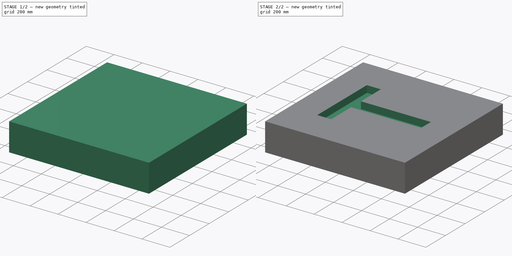
[diagram: build sequence overview — one tinted view per stage of 2, left to right]
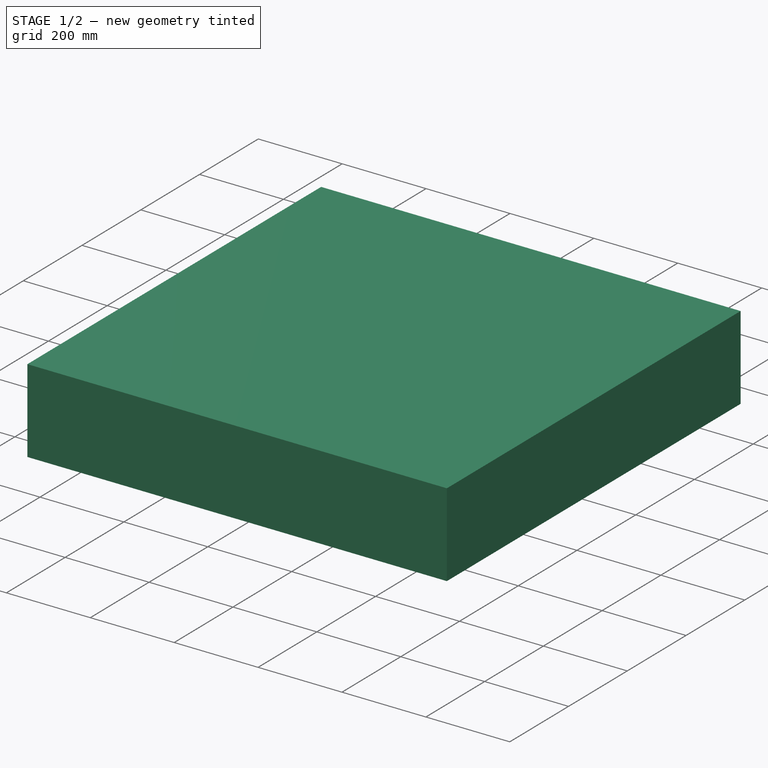
[diagram: stage 1 of 2 — iso view after this stage's code; geometry added in this stage tinted green]
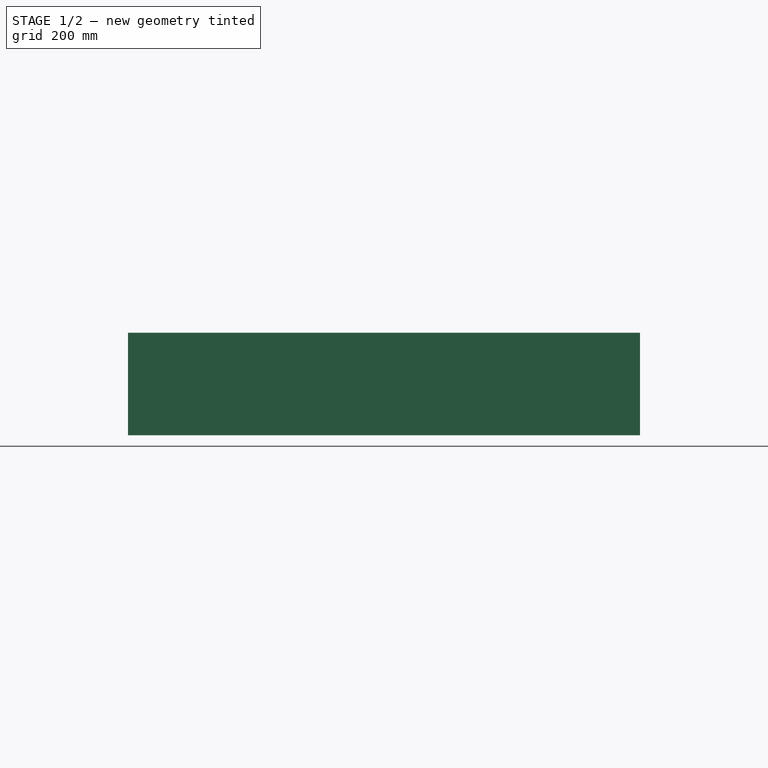
[diagram: stage 1 of 2 — front view after this stage's code; geometry added in this stage tinted green]
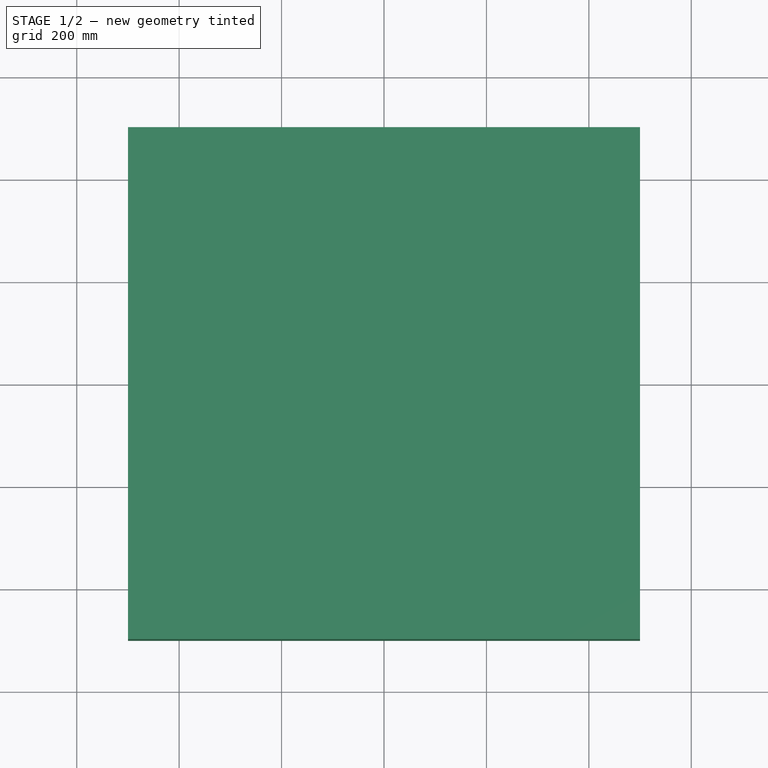
[diagram: stage 1 of 2 — top view after this stage's code; geometry added in this stage tinted green]
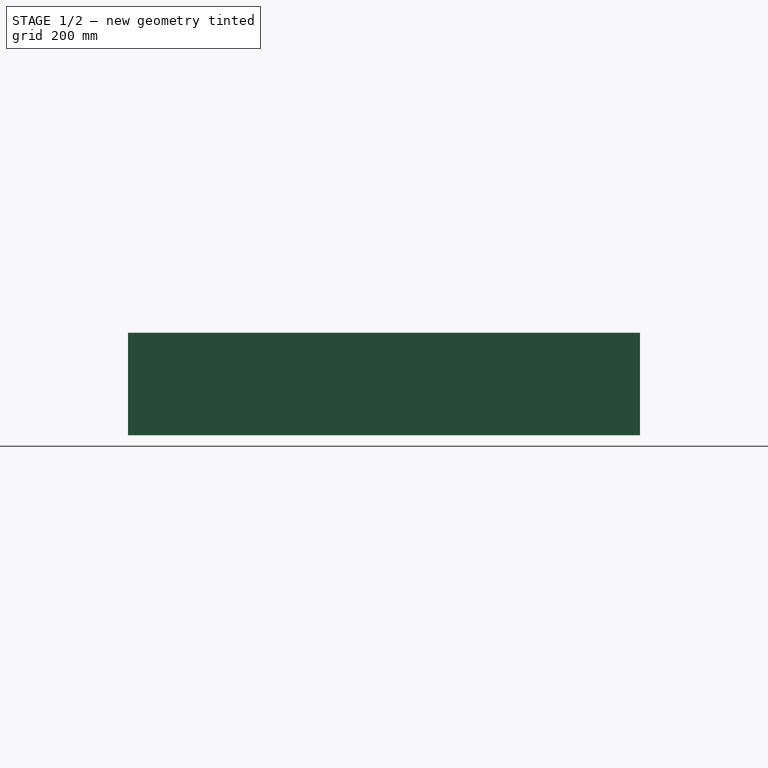
[diagram: stage 1 of 2 — right view after this stage's code; geometry added in this stage tinted green]
FCSTD DOCUMENT  (FreeCAD 0.16R6706 (Git))
Label: engraved
License: All rights reserved
LicenseURL: http://en.wikipedia.org/wiki/All_rights_reserved
objects: Sketcher::SketchObject×2, PartDesign::Pad×1, PartDesign::Pocket×1, Drawing::FeatureViewPart×1, Drawing::FeaturePage×1
note: 6 computed .brp shape members not serialized (recipe doc carries the construction recipe); baked Part::Feature solids carry a one-line shape summary decoded from their .brp

FEATURE [Sketcher::SketchObject] Sketch
  sketch-geometry (4):
    g0: LineSegment StartX=-500 StartY=500 StartZ=0 EndX=500 EndY=500 EndZ=0
    g1: LineSegment StartX=500 StartY=500 StartZ=0 EndX=500 EndY=-500 EndZ=0
    g2: LineSegment StartX=500 StartY=-500 StartZ=0 EndX=-500 EndY=-500 EndZ=0
    g3: LineSegment StartX=-500 StartY=-500 StartZ=0 EndX=-500 EndY=500 EndZ=0
  constraints (11):
    c: Coincident(g0,g1)
    c: Coincident(g1,g2)
    c: Coincident(g2,g3)
    c: Coincident(g3,g0)
    c: Horizontal(g0)
    c: Horizontal(g2)
    c: Vertical(g1)
    c: Vertical(g3)
    c: DistanceX(g0,g0) = 1000
    c: DistanceY(g1,g1) = 1000
    c: Symmetric(g1,g0,g-1)
FEATURE [PartDesign::Pad] Pad
  Length = 200
  Length2 = 100
  Sketch = -> Sketch
  Type = 0
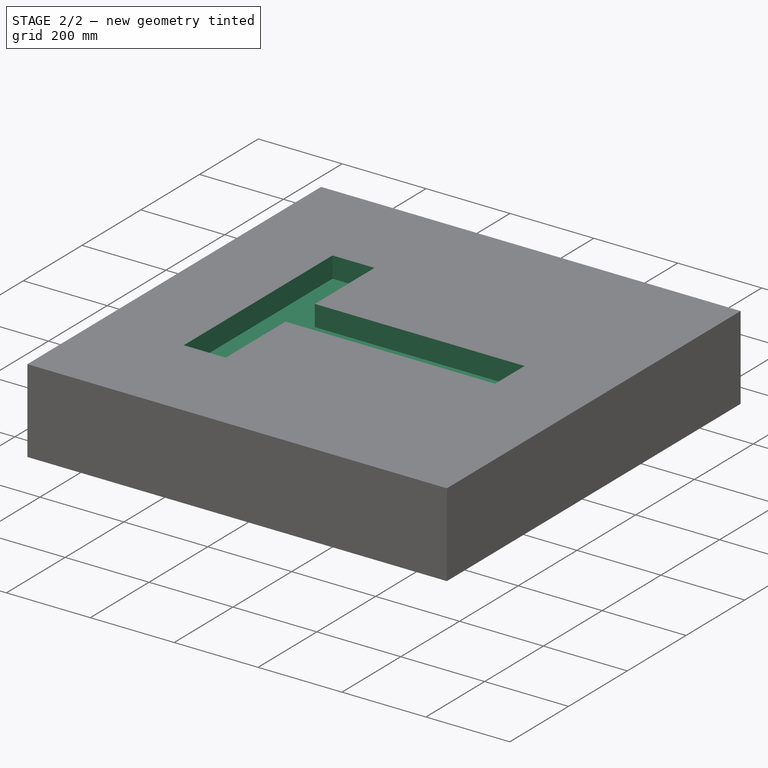
[diagram: stage 2 of 2 — iso view after this stage's code; geometry added in this stage tinted green]
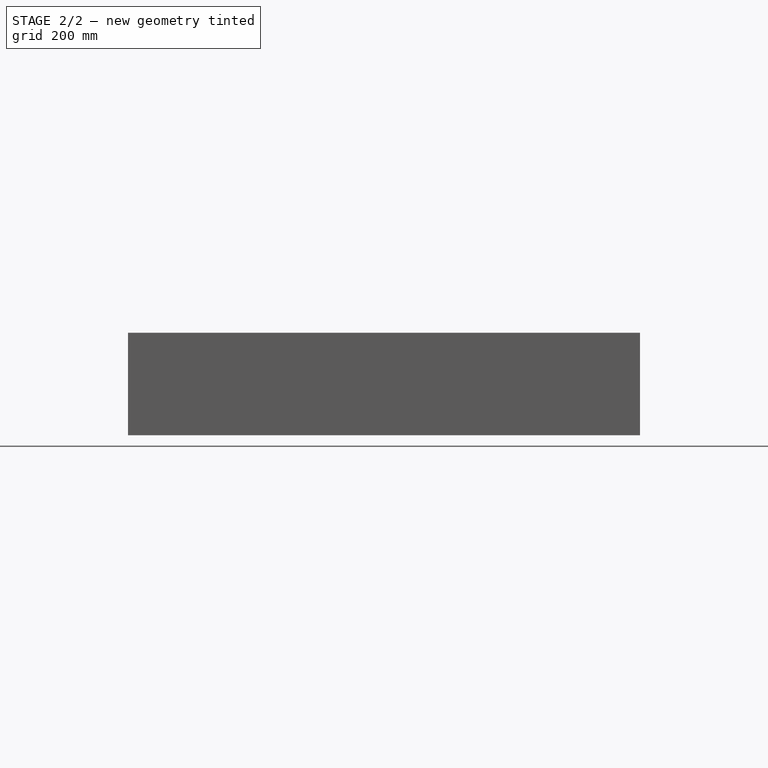
[diagram: stage 2 of 2 — front view after this stage's code; geometry added in this stage tinted green]
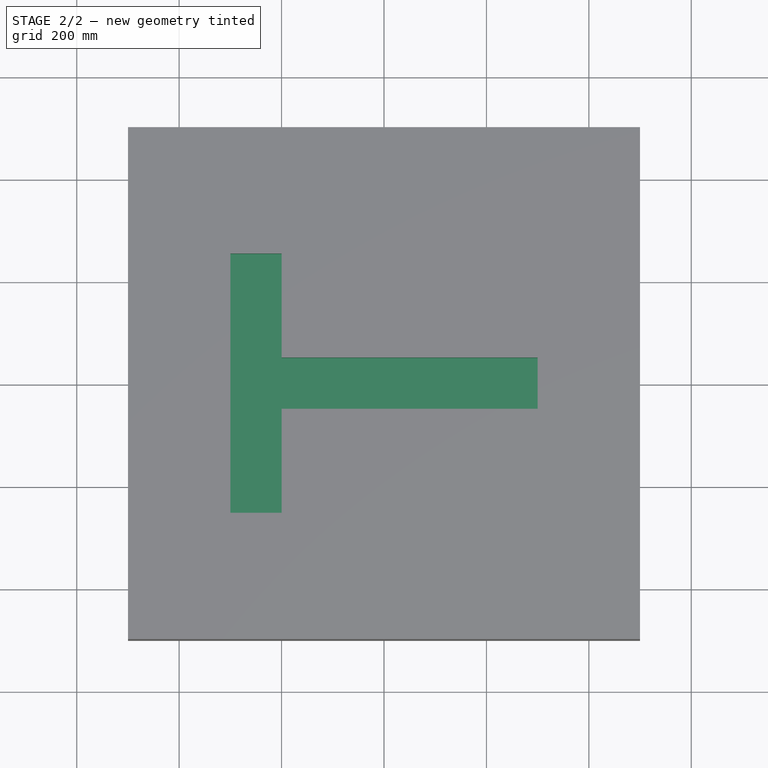
[diagram: stage 2 of 2 — top view after this stage's code; geometry added in this stage tinted green]
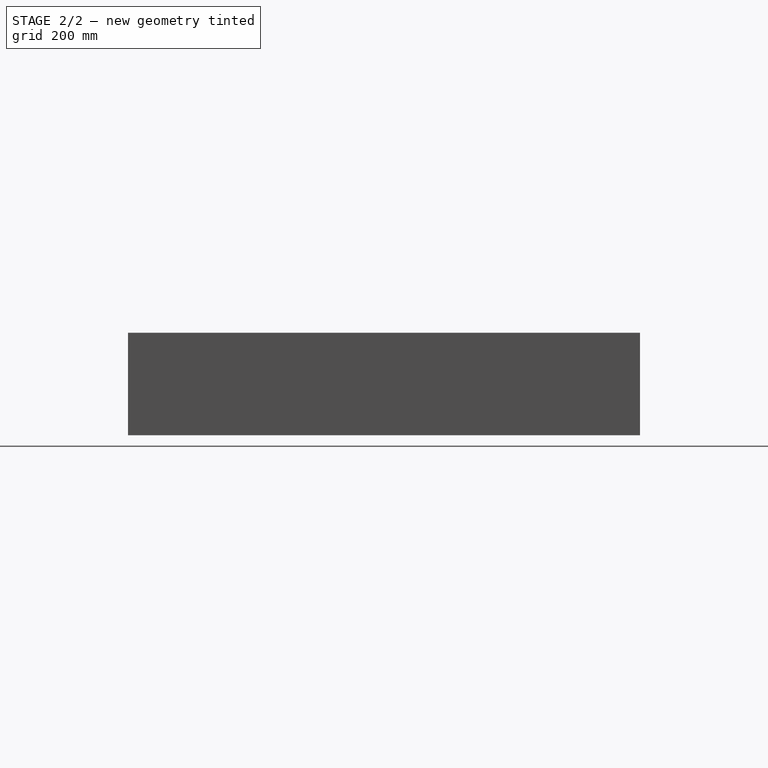
[diagram: stage 2 of 2 — right view after this stage's code; geometry added in this stage tinted green]
FEATURE [Sketcher::SketchObject] Sketch001
  Placement = pos=(0,0,200) rot=(0,0,1;0rad)
  Support = -> Pad [Face6]
  sketch-geometry (8):
    g0: LineSegment StartX=-300 StartY=253.106 StartZ=0 EndX=-300 EndY=-253.106 EndZ=0
    g1: LineSegment StartX=-300 StartY=-253.106 StartZ=0 EndX=-200 EndY=-253.106 EndZ=0
    g2: LineSegment StartX=-200 StartY=-253.106 StartZ=0 EndX=-200 EndY=-50 EndZ=0
    g3: LineSegment StartX=-200 StartY=-50 StartZ=0 EndX=300 EndY=-50 EndZ=0
    g4: LineSegment StartX=300 StartY=-50 StartZ=0 EndX=300 EndY=50 EndZ=0
    g5: LineSegment StartX=300 StartY=50 StartZ=0 EndX=-200 EndY=50 EndZ=0
    g6: LineSegment StartX=-200 StartY=50 StartZ=0 EndX=-200 EndY=253.106 EndZ=0
    g7: LineSegment StartX=-200 StartY=253.106 StartZ=0 EndX=-300 EndY=253.106 EndZ=0
  constraints (22):
    c: Vertical(g0)
    c: Coincident(g0,g1)
    c: Horizontal(g1)
    c: Coincident(g1,g2)
    c: Vertical(g2)
    c: Coincident(g2,g3)
    c: Horizontal(g3)
    c: Coincident(g3,g4)
    c: Coincident(g4,g5)
    c: Horizontal(g5)
    c: Coincident(g5,g6)
    c: Vertical(g6)
    c: Coincident(g6,g7)
    c: Coincident(g7,g0)
    c: Horizontal(g7)
    c: Vertical(g4)
    c: Symmetric(g5,g2,g-1)
    c: DistanceX(g7,g7) = 100
    c: DistanceY(g4,g4) = 100
    c: Equal(g6,g2)
    c: DistanceX(g5,g-1) = 200
    c: DistanceX(g-1,g4) = 300
FEATURE [PartDesign::Pocket] Pocket
  Length = 50
  Sketch = -> Sketch001
  Type = 0
FEATURE [Drawing::FeatureViewPart] View
  Direction = (1,-1,1)
  HiddenWidth = 0.15
  LineWidth = 0.35
  Rotation = 60
  Scale = 0.1
  ShowHiddenLines = true
  ShowSmoothLines = false
  Source = -> Pocket
  Tolerance = 0.05
  ViewResult = <blob: 2830 chars omitted>
  Visible = true
  X = 105
  Y = 164.83
FEATURE [Drawing::FeaturePage] Page
  Group = -> [View]
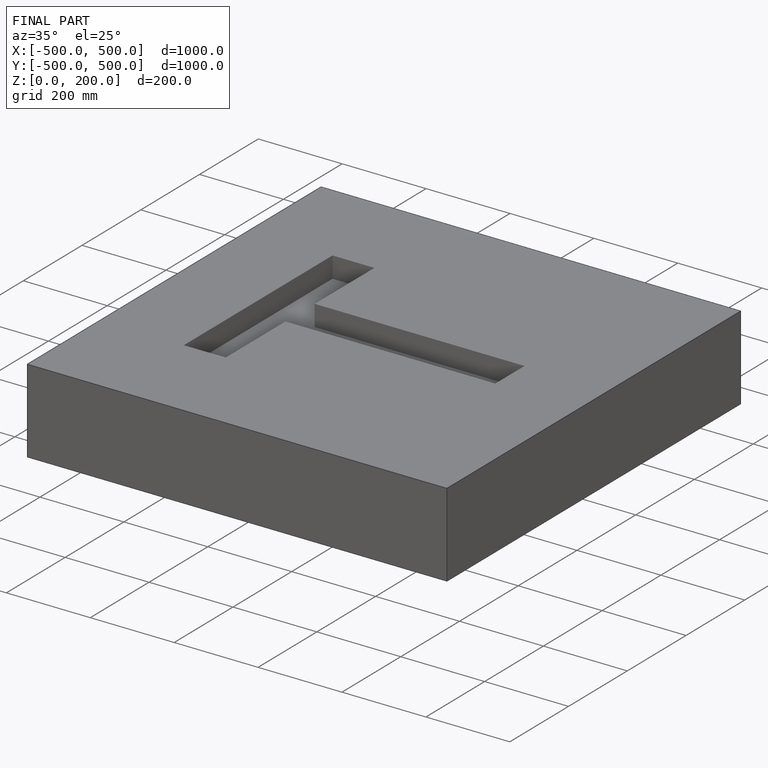
[diagram: finished part — iso view with bounding-box wireframe]
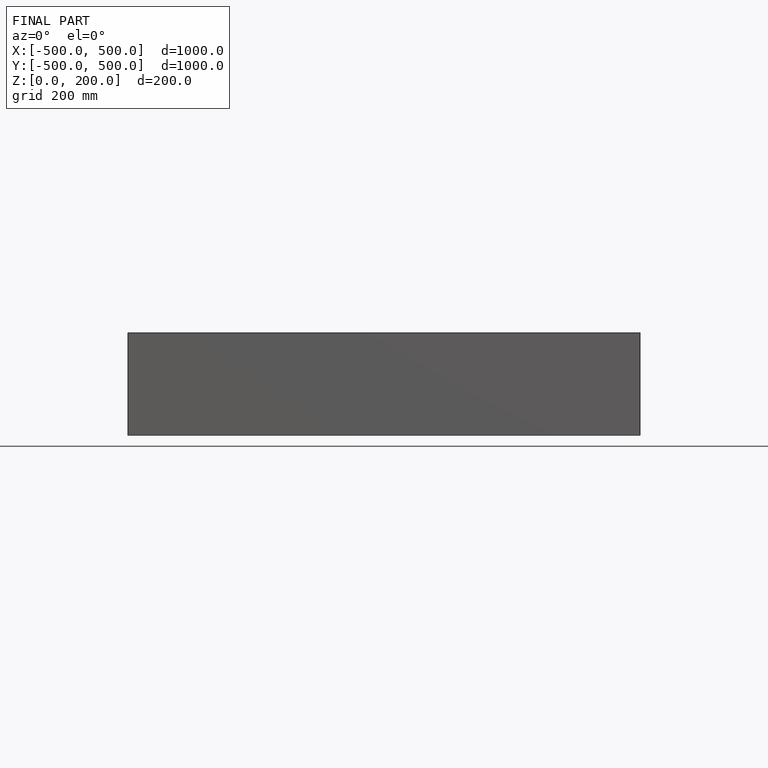
[diagram: finished part — front view with bounding-box wireframe]
